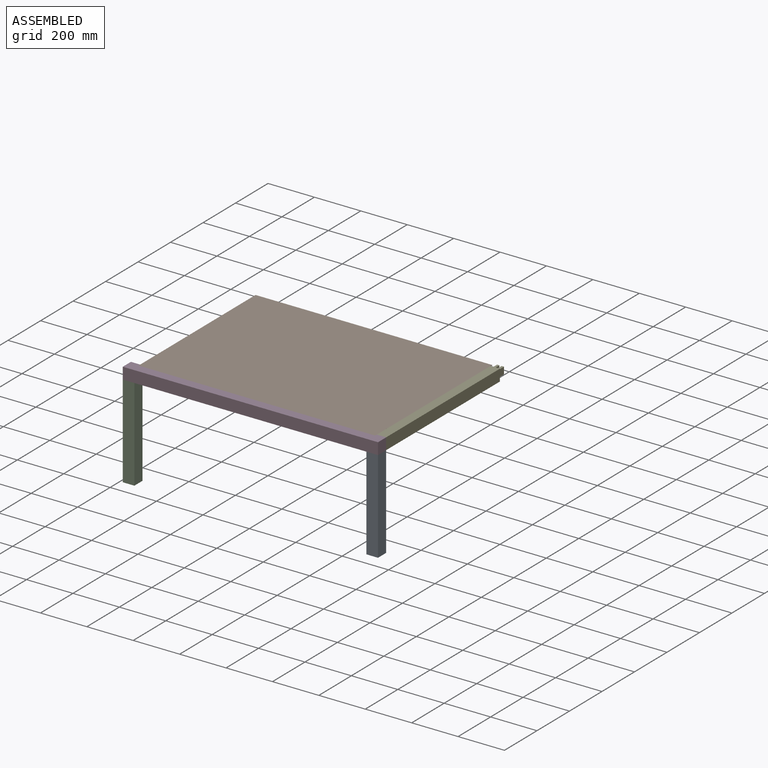
[diagram: assembled view]
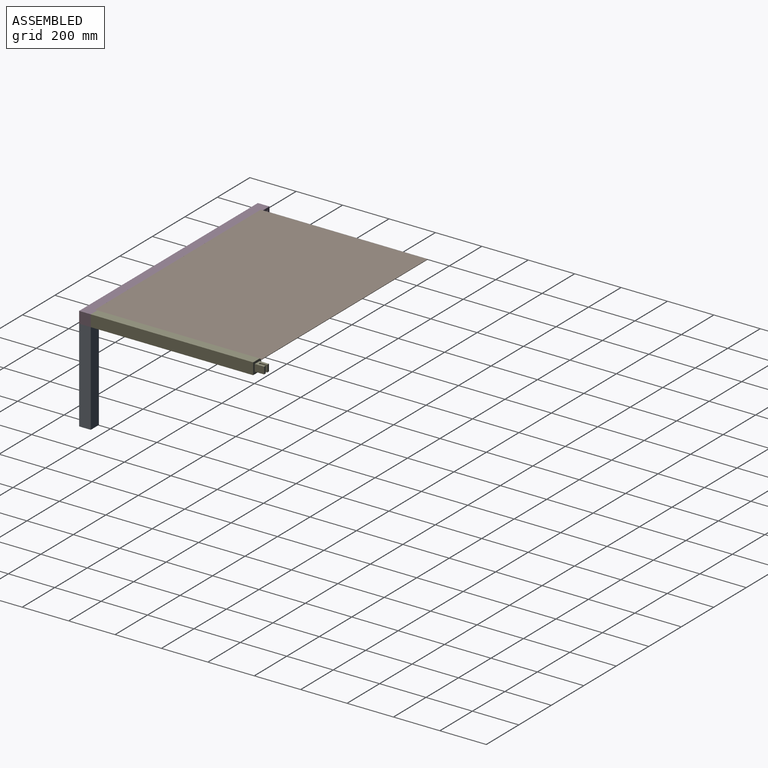
[diagram: assembled view, second angle]
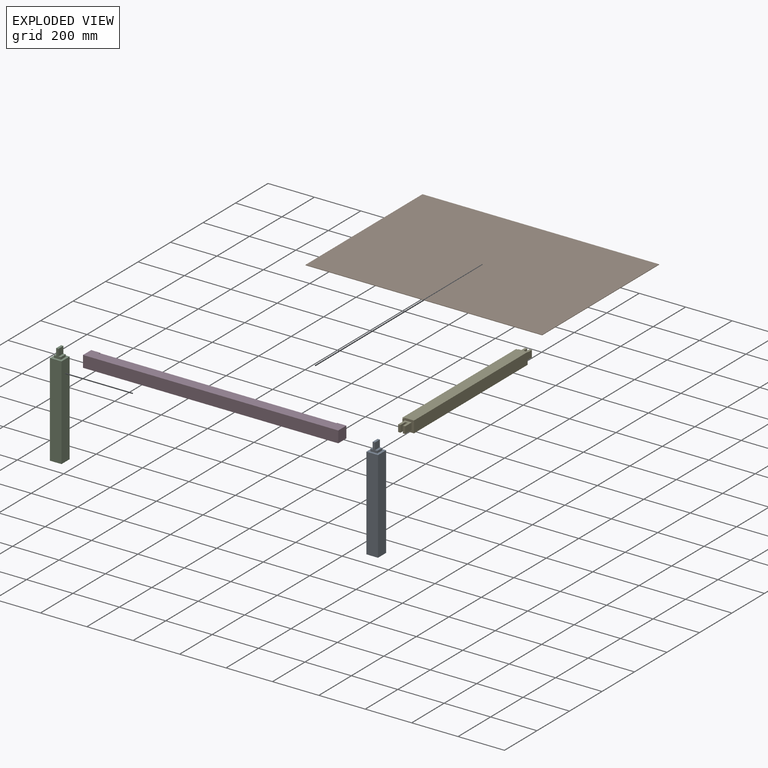
[diagram: exploded view]
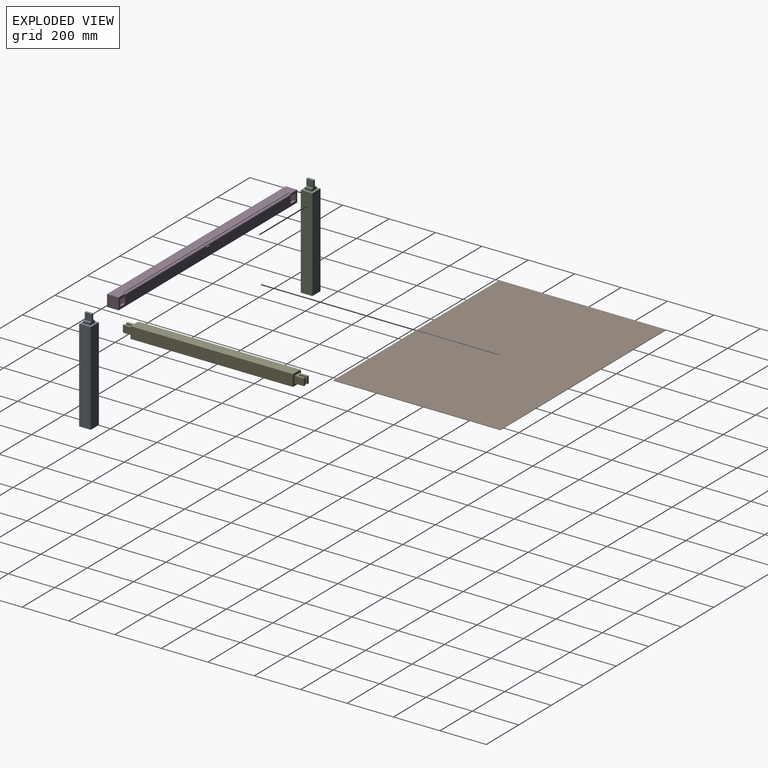
[diagram: exploded view, second angle]
ASSEMBLY  parts=5 mates=4
PART A: 15 faces, bbox 50x50x440 mm
  f0: plane 40x30mm, normal (-1,0,0), area 600mm2, adj f1,f3,f4,f10,f11,f12,f13,f14
  f1: plane 30x10mm, normal (0,-1,0), area 300mm2, adj f0,f2,f10,f14
  f2: plane 40x30mm, normal (1,0,0), area 600mm2, adj f1,f3,f4,f10,f11,f12,f13,f14
  f3: plane 30x10mm, normal (0,1,0), area 300mm2, adj f0,f2,f10,f12
  f4: plane 30x10mm, normal (0,0,1), area 300mm2, adj f0,f2,f11,f13
  f5: plane 400x50mm, normal (0,-1,0), area 20000mm2, adj f6,f8,f9,f10
  f6: plane 400x50mm, normal (1,0,0), area 20000mm2, adj f5,f7,f9,f10
  f7: plane 400x50mm, normal (0,1,0), area 20000mm2, adj f6,f8,f9,f10
  f8: plane 400x50mm, normal (-1,0,0), area 20000mm2, adj f5,f7,f9,f10
  f9: plane 50x50mm, normal (0,0,-1), area 2500mm2, adj f5,f6,f7,f8
  f10: plane 50x50mm, normal (0,0,1), area 1600mm2, adj f0,f1,f2,f3,f5,f6,f7,f8
  f11: plane 30x30mm, normal (0,1,0), area 900mm2, adj f0,f2,f4,f12
  f12: plane 30x10mm, normal (0,0,1), area 300mm2, adj f0,f2,f3,f11
  f13: plane 30x30mm, normal (0,-1,0), area 900mm2, adj f0,f2,f4,f14
  f14: plane 30x10mm, normal (0,0,1), area 300mm2, adj f0,f1,f2,f13
PART B: 6 faces, bbox 1020x720x2 mm
  f0: plane 1020x2mm, normal (0,-1,0), area 2040mm2, adj f1,f3,f4,f5
  f1: plane 720x2mm, normal (1,0,0), area 1440mm2, adj f0,f2,f4,f5
  f2: plane 1020x2mm, normal (0,1,0), area 2040mm2, adj f1,f3,f4,f5
  f3: plane 720x2mm, normal (-1,0,0), area 1440mm2, adj f0,f2,f4,f5
  f4: plane 1020x720mm, normal (0,0,1), area 734400mm2, adj f0,f1,f2,f3
  f5: plane 1020x720mm, normal (0,0,-1), area 734400mm2, adj f0,f1,f2,f3
PART C: same geometry as A
PART D: 32 faces, bbox 1100x50x50 mm
  f0: plane 1100x50mm, normal (0,1,0), area 49020mm2, adj f2,f4,f5,f6,f7,f8,f10,f11
  f1: plane 30x10mm, normal (0,-1,0), area 300mm2, adj f2,f7,f8,f25
  f2: plane 1100x50mm, normal (0,0,-1), area 53200mm2, adj f0,f1,f3,f4,f5,f7,f8,f9
  f3: plane 1100x50mm, normal (0,-1,0), area 55000mm2, adj f2,f4,f5,f6
  f4: plane 50x50mm, normal (1,0,0), area 2500mm2, adj f0,f2,f3,f6
  f5: plane 50x50mm, normal (-1,0,0), area 2500mm2, adj f0,f2,f3,f6
  f6: plane 1100x50mm, normal (0,0,1), area 44800mm2, adj f0,f3,f4,f5,f16,f17,f18
  f7: plane 40x40mm, normal (1,0,0), area 1500mm2, adj f0,f1,f2,f9,f10,f25
  f8: plane 40x40mm, normal (-1,0,0), area 1500mm2, adj f0,f1,f2,f9,f10,f25
  f9: plane 40x30mm, normal (0,1,0), area 1200mm2, adj f2,f7,f8,f10
  f10: plane 40x30mm, normal (0,0,-1), area 1200mm2, adj f0,f7,f8,f9
  f11: plane 40x40mm, normal (-1,0,0), area 1500mm2, adj f0,f2,f12,f14,f15,f26
  f12: plane 40x30mm, normal (0,1,0), area 1200mm2, adj f2,f11,f13,f15
  f13: plane 40x40mm, normal (1,0,0), area 1500mm2, adj f0,f2,f12,f14,f15,f26
  f14: plane 30x10mm, normal (0,-1,0), area 300mm2, adj f2,f11,f13,f26
  f15: plane 40x30mm, normal (0,0,-1), area 1200mm2, adj f0,f11,f12,f13
  f16: plane 10x2mm, normal (1,0,0), area 20mm2, adj f0,f6,f17,f19
  f17: plane 1020x2mm, normal (0,1,0), area 2040mm2, adj f6,f16,f18,f19
  f18: plane 10x2mm, normal (-1,0,0), area 20mm2, adj f0,f6,f17,f19
  f19: plane 1020x10mm, normal (0,0,1), area 10200mm2, adj f0,f16,f17,f18
  f20: plane 5x2mm, normal (-1,0,0), area 10mm2, adj f0,f21,f23,f24
  f21: plane 1030x5mm, normal (0,0,1), area 5150mm2, adj f0,f20,f22,f24
  f22: plane 5x2mm, normal (1,0,0), area 10mm2, adj f0,f21,f23,f24
  f23: plane 1030x5mm, normal (0,0,-1), area 5150mm2, adj f0,f20,f22,f24
  f24: plane 1030x2mm, normal (0,1,0), area 2060mm2, adj f20,f21,f22,f23
  f25: plane 30x10mm, normal (0,0,1), area 300mm2, adj f0,f1,f7,f8
  f26: plane 30x10mm, normal (0,0,1), area 300mm2, adj f0,f11,f13,f14
  f27: plane 30x4mm, normal (1,0,0), area 120mm2, adj f0,f28,f30,f31
  f28: plane 30x20mm, normal (0,0,-1), area 600mm2, adj f0,f27,f29,f31
  f29: plane 30x4mm, normal (-1,0,0), area 120mm2, adj f0,f28,f30,f31
  f30: plane 30x20mm, normal (0,0,1), area 600mm2, adj f0,f27,f29,f31
  f31: plane 20x4mm, normal (0,1,0), area 80mm2, adj f27,f28,f29,f30
PART E: 30 faces, bbox 50x780x50 mm
  f0: plane 700x45mm, normal (0,0,1), area 31500mm2, adj f1,f8,f10,f28
  f1: plane 50x50mm, normal (0,-1,0), area 1570mm2, adj f0,f2,f6,f7,f8,f9,f11,f12
  f2: plane 700x40mm, normal (1,0,0), area 28000mm2, adj f1,f9,f10,f25
  f3: plane 30x10mm, normal (0,1,0), area 300mm2, adj f4,f19,f20,f23
  f4: plane 40x30mm, normal (-1,0,0), area 900mm2, adj f3,f10,f18,f20,f21,f22,f23,f24
  f5: plane 30x10mm, normal (0,-1,0), area 300mm2, adj f6,f11,f13,f16
  f6: plane 40x30mm, normal (1,0,0), area 900mm2, adj f1,f5,f12,f13,f14,f15,f16,f17
  f7: plane 700x1mm, normal (0,0,1), area 700mm2, adj f1,f10,f26,f27
  f8: plane 700x50mm, normal (-1,0,0), area 35000mm2, adj f0,f1,f9,f10
  f9: plane 700x50mm, normal (0,0,-1), area 35000mm2, adj f1,f2,f8,f10
  f10: plane 50x50mm, normal (0,1,0), area 1570mm2, adj f0,f2,f4,f7,f8,f9,f18,f19
  f11: plane 40x30mm, normal (-1,0,0), area 900mm2, adj f1,f5,f12,f13,f14,f15,f16,f17
  f12: plane 40x30mm, normal (0,0,-1), area 1200mm2, adj f1,f6,f11,f14
  f13: plane 40x30mm, normal (0,0,1), area 1200mm2, adj f1,f5,f6,f11
  f14: plane 30x10mm, normal (0,-1,0), area 300mm2, adj f6,f11,f12,f15
  f15: plane 30x30mm, normal (0,0,1), area 900mm2, adj f6,f11,f14,f17
  f16: plane 30x30mm, normal (0,0,-1), area 900mm2, adj f5,f6,f11,f17
  f17: plane 30x10mm, normal (0,-1,0), area 300mm2, adj f6,f11,f15,f16
  f18: plane 40x30mm, normal (0,0,1), area 1200mm2, adj f4,f10,f19,f21
  f19: plane 40x30mm, normal (1,0,0), area 900mm2, adj f3,f10,f18,f20,f21,f22,f23,f24
  f20: plane 40x30mm, normal (0,0,-1), area 1200mm2, adj f3,f4,f10,f19
  f21: plane 30x10mm, normal (0,1,0), area 300mm2, adj f4,f18,f19,f22
  f22: plane 30x30mm, normal (0,0,-1), area 900mm2, adj f4,f19,f21,f24
  f23: plane 30x30mm, normal (0,0,1), area 900mm2, adj f3,f4,f19,f24
  f24: plane 30x10mm, normal (0,1,0), area 300mm2, adj f4,f19,f22,f23
  f25: plane 700x2mm, normal (0,0,1), area 1400mm2, adj f1,f2,f10,f26
  f26: plane 700x10mm, normal (1,0,0), area 7000mm2, adj f1,f7,f10,f25
  f27: plane 700x5mm, normal (-1,0,0), area 3500mm2, adj f1,f7,f10,f29
  f28: plane 700x5mm, normal (1,0,0), area 3500mm2, adj f0,f1,f10,f29
  f29: plane 700x2mm, normal (0,0,1), area 1400mm2, adj f1,f10,f27,f28
PLACE A rot(axis=(0,0,-1),90deg) t=(461.16,-352.01,15.68)mm
PLACE B t=(421.16,407.99,63.68)mm
PLACE C rot(axis=(0,0,-1),90deg) t=(-588.84,-352.01,15.68)mm
PLACE D t=(461.16,-302.01,15.68)mm
PLACE E rot(axis=(0,-1,0),90deg) t=(461.16,397.99,65.68)mm
MATE fastened D.f2 <-> C.f10  axis (0,0,-1) through (-638.84,-302.01,15.68)mm
MATE fastened E.f25 <-> D.f18  axis (-1,0,0) through (421.16,-302.01,65.68)mm
MATE fastened A.f7 <-> D.f4  axis (-1,0,0) through (461.16,-302.01,15.68)mm
MATE fastened D.f17 <-> B.f0  axis (0,1,0) through (421.16,-312.01,63.68)mm
